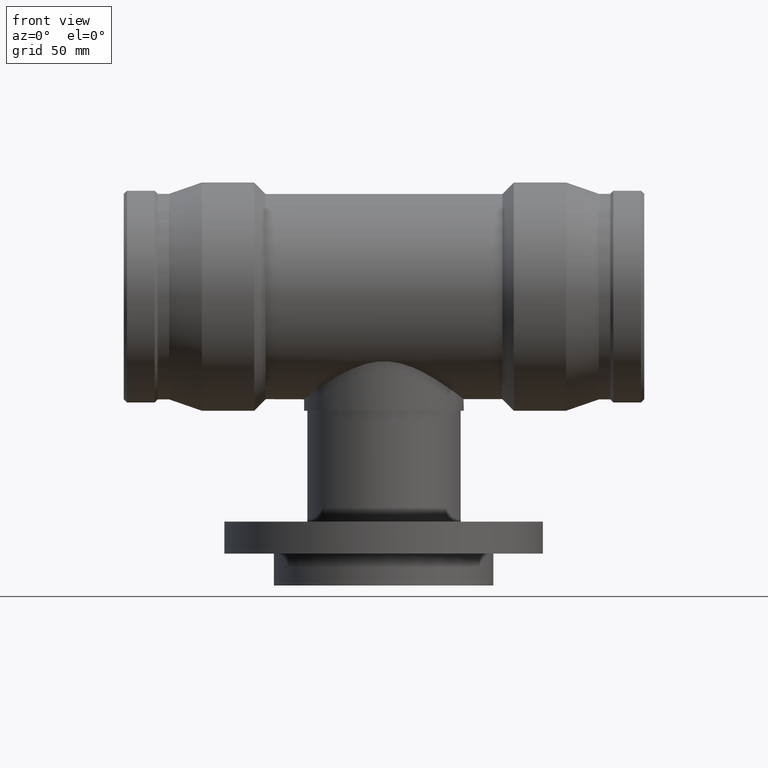
[diagram: clean part render]
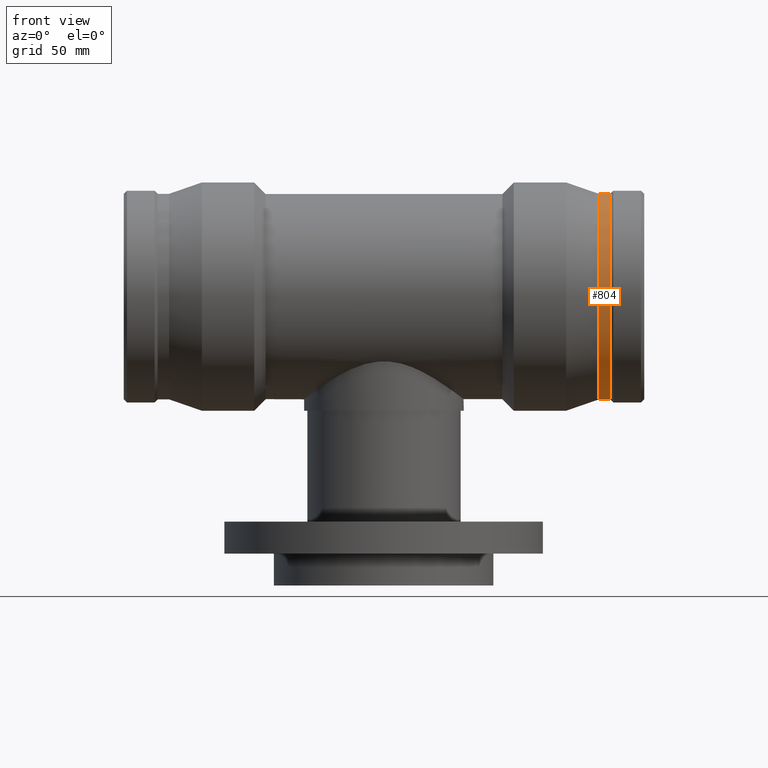
[diagram: same view with one face highlighted and labeled with its STEP entity id]
A machine part, front view. The second image highlights one B-rep face of the part: STEP entity #804.
In plain terms, the highlighted cylindrical surface (bore or boss wall) has radius 64.5002 mm, axis along (1, 0, 0).
Its self-contained STEP definition (entity closure, byte-faithful):
#101=FACE_BOUND('',#390,.T.);
#171=CIRCLE('',#923,64.50015);
#172=CIRCLE('',#925,64.50015);
#213=CYLINDRICAL_SURFACE('',#924,64.50015);
#268=FACE_OUTER_BOUND('',#389,.T.);
#389=EDGE_LOOP('',(#721));
#390=EDGE_LOOP('',(#722));
#494=VERTEX_POINT('',#1818);
#495=VERTEX_POINT('',#1821);
#576=EDGE_CURVE('',#494,#494,#171,.T.);
#577=EDGE_CURVE('',#495,#495,#172,.T.);
#721=ORIENTED_EDGE('',*,*,#576,.T.);
#722=ORIENTED_EDGE('',*,*,#577,.F.);
#804=ADVANCED_FACE('',(#268,#101),#213,.T.);
#923=AXIS2_PLACEMENT_3D('',#1819,#1159,#1160);
#924=AXIS2_PLACEMENT_3D('',#1820,#1161,#1162);
#925=AXIS2_PLACEMENT_3D('',#1822,#1163,#1164);
#1159=DIRECTION('center_axis',(1.,0.,0.));
#1160=DIRECTION('ref_axis',(0.,0.,-1.));
#1161=DIRECTION('center_axis',(1.,0.,0.));
#1162=DIRECTION('ref_axis',(0.,1.,0.));
#1163=DIRECTION('center_axis',(1.,0.,0.));
#1164=DIRECTION('ref_axis',(0.,0.,-1.));
#1818=CARTESIAN_POINT('',(134.6,64.50015,0.));
#1819=CARTESIAN_POINT('Origin',(134.6,0.,0.));
#1820=CARTESIAN_POINT('Origin',(138.15,0.,0.));
#1821=CARTESIAN_POINT('',(141.7,64.50015,0.));
#1822=CARTESIAN_POINT('Origin',(141.7,0.,0.));